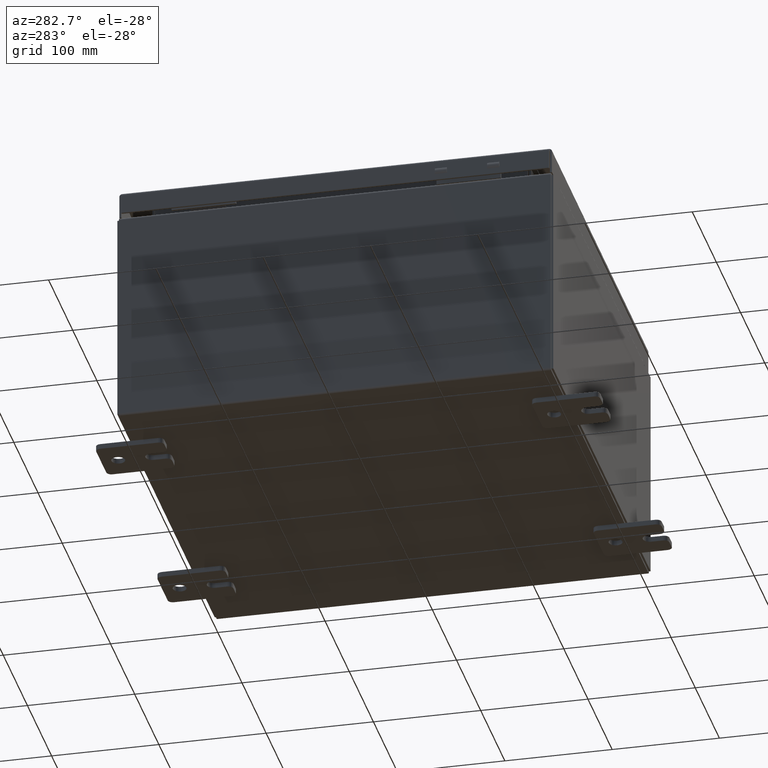
[diagram: clean part render]
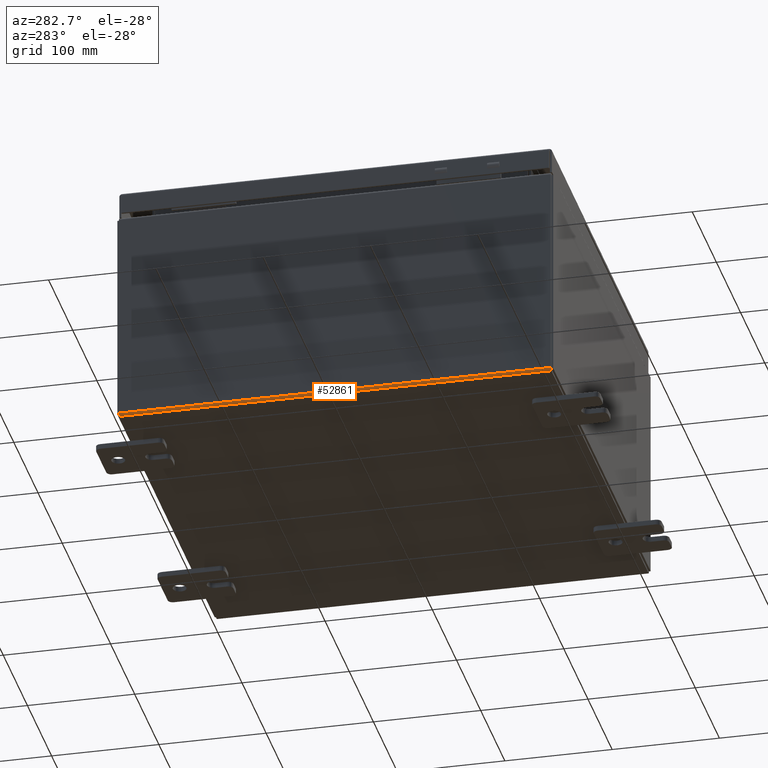
[diagram: same view with one face highlighted and labeled with its STEP entity id]
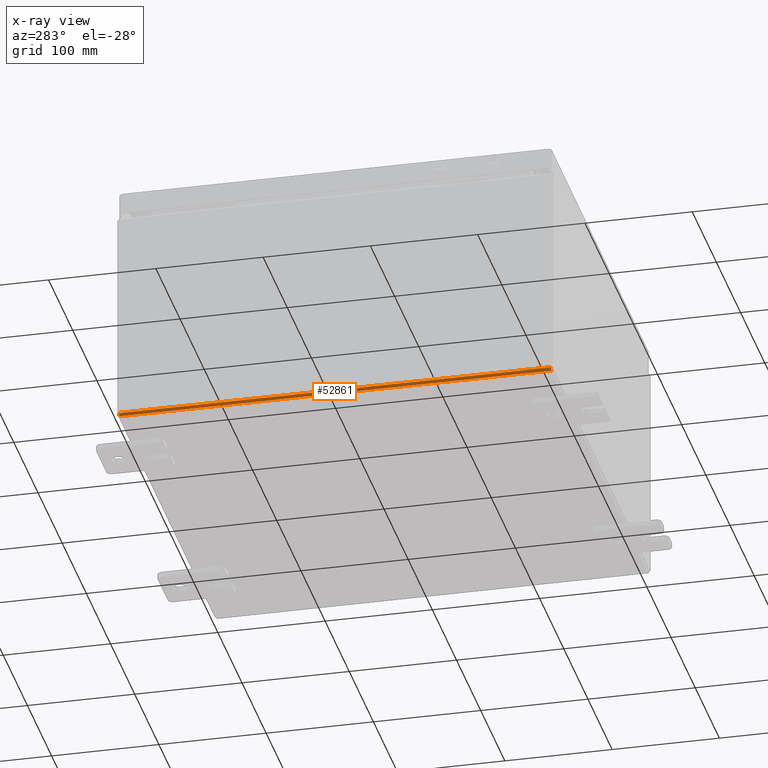
[diagram: x-ray of the same camera — body ghosted, the highlighted face saturated]
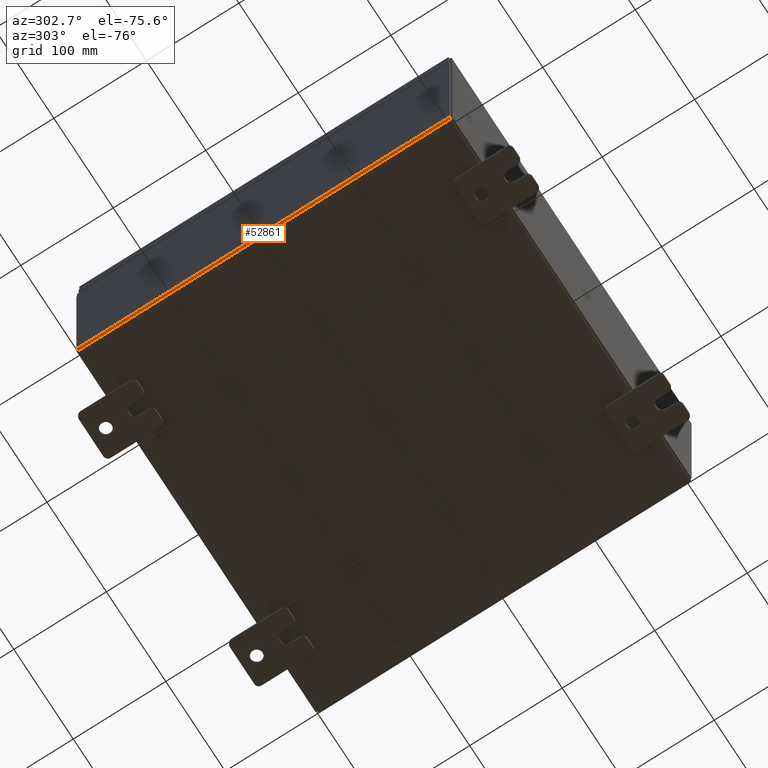
[diagram: same view with one face highlighted and labeled with its STEP entity id]
A machine part, auxiliary view. The second image highlights one B-rep face of the part: STEP entity #52861.
The next image is the same camera in x-ray: the body ghosted, the highlighted face saturated — about 0% of this face is hidden behind the body in this view.
A second angle (auxiliary view) of the same face is appended — the face is thin or edge-on in the first view.
In plain terms, the highlighted cylindrical surface (edge-blend (fillet) strip) has radius 2.2276 mm, axis along (0, -1, 0).
Its self-contained STEP definition (entity closure, byte-faithful):
#394 = CARTESIAN_POINT ( 'NONE',  ( -7.912300000000001000, 7.925299999999998200, 0.01300000000000015000 ) ) ;
#538 = VERTEX_POINT ( 'NONE', #22164 ) ;
#2459 = DIRECTION ( 'NONE',  ( -0.0000000000000000000, 1.000000000000000000, -0.0000000000000000000 ) ) ;
#2800 = DIRECTION ( 'NONE',  ( 0.0000000000000000000, -1.000000000000000000, 0.0000000000000000000 ) ) ;
#4647 = CARTESIAN_POINT ( 'NONE',  ( -8.000000000000001800, 7.925299999999998200, 0.01299999999999985200 ) ) ;
#4721 = CARTESIAN_POINT ( 'NONE',  ( -8.000000000000001800, 7.925299999999998200, 0.01299999999999985200 ) ) ;
#5230 = DIRECTION ( 'NONE',  ( 0.0000000000000000000, 0.0000000000000000000, -1.000000000000000000 ) ) ;
#9480 = DIRECTION ( 'NONE',  ( -0.0000000000000000000, 1.000000000000000000, -0.0000000000000000000 ) ) ;
#10089 = CARTESIAN_POINT ( 'NONE',  ( -8.000000000000001800, -7.925300000000000900, 0.01299999999999985200 ) ) ;
#10720 = CIRCLE ( 'NONE', #54447, 0.08770000000000009700 ) ;
#11557 = CYLINDRICAL_SURFACE ( 'NONE', #23234, 0.08770000000000026400 ) ;
#12258 = DIRECTION ( 'NONE',  ( -1.000000000000000000, 0.0000000000000000000, -3.455694262224952200E-015 ) ) ;
#15030 = VERTEX_POINT ( 'NONE', #10089 ) ;
#20342 = CARTESIAN_POINT ( 'NONE',  ( -7.912300000000001000, -7.925300000000000900, -0.07469999999999996100 ) ) ;
#22164 = CARTESIAN_POINT ( 'NONE',  ( -7.912300000000001000, 7.925299999999998200, -0.07469999999999998900 ) ) ;
#23234 = AXIS2_PLACEMENT_3D ( 'NONE', #46033, #2800, #12258 ) ;
#23381 = EDGE_CURVE ( 'NONE', #538, #54484, #41737, .T. ) ;
#24707 = DIRECTION ( 'NONE',  ( 0.0000000000000000000, -1.000000000000000000, 0.0000000000000000000 ) ) ;
#27027 = EDGE_CURVE ( 'NONE', #15030, #39843, #10720, .T. ) ;
#32705 = EDGE_CURVE ( 'NONE', #15030, #54484, #51922, .T. ) ;
#33092 = EDGE_LOOP ( 'NONE', ( #56211, #51042, #61841, #49463 ) ) ;
#34123 = DIRECTION ( 'NONE',  ( -0.0000000000000000000, 1.000000000000000000, -0.0000000000000000000 ) ) ;
#39306 = AXIS2_PLACEMENT_3D ( 'NONE', #394, #34123, #5230 ) ;
#39843 = VERTEX_POINT ( 'NONE', #20342 ) ;
#40152 = LINE ( 'NONE', #60255, #51532 ) ;
#41737 = CIRCLE ( 'NONE', #39306, 0.08770000000000009700 ) ;
#46033 = CARTESIAN_POINT ( 'NONE',  ( -7.912300000000001000, -7.925300000000000900, 0.01300000000000015000 ) ) ;
#49463 = ORIENTED_EDGE ( 'NONE', *, *, #23381, .F. ) ;
#50115 = FACE_OUTER_BOUND ( 'NONE', #33092, .T. ) ;
#50439 = VECTOR ( 'NONE', #9480, 39.37007874015748100 ) ;
#50909 = EDGE_CURVE ( 'NONE', #39843, #538, #40152, .T. ) ;
#51042 = ORIENTED_EDGE ( 'NONE', *, *, #27027, .F. ) ;
#51532 = VECTOR ( 'NONE', #2459, 39.37007874015748100 ) ;
#51922 = LINE ( 'NONE', #4647, #50439 ) ;
#52861 = ADVANCED_FACE ( 'NONE', ( #50115 ), #11557, .T. ) ;
#53642 = CARTESIAN_POINT ( 'NONE',  ( -7.912300000000001000, -7.925300000000000900, 0.01300000000000015000 ) ) ;
#54447 = AXIS2_PLACEMENT_3D ( 'NONE', #53642, #24707, #58466 ) ;
#54484 = VERTEX_POINT ( 'NONE', #4721 ) ;
#56211 = ORIENTED_EDGE ( 'NONE', *, *, #50909, .F. ) ;
#58466 = DIRECTION ( 'NONE',  ( 0.0000000000000000000, 0.0000000000000000000, -1.000000000000000000 ) ) ;
#60255 = CARTESIAN_POINT ( 'NONE',  ( -7.912300000000001000, -7.925300000000000900, -0.07469999999999996100 ) ) ;
#61841 = ORIENTED_EDGE ( 'NONE', *, *, #32705, .T. ) ;